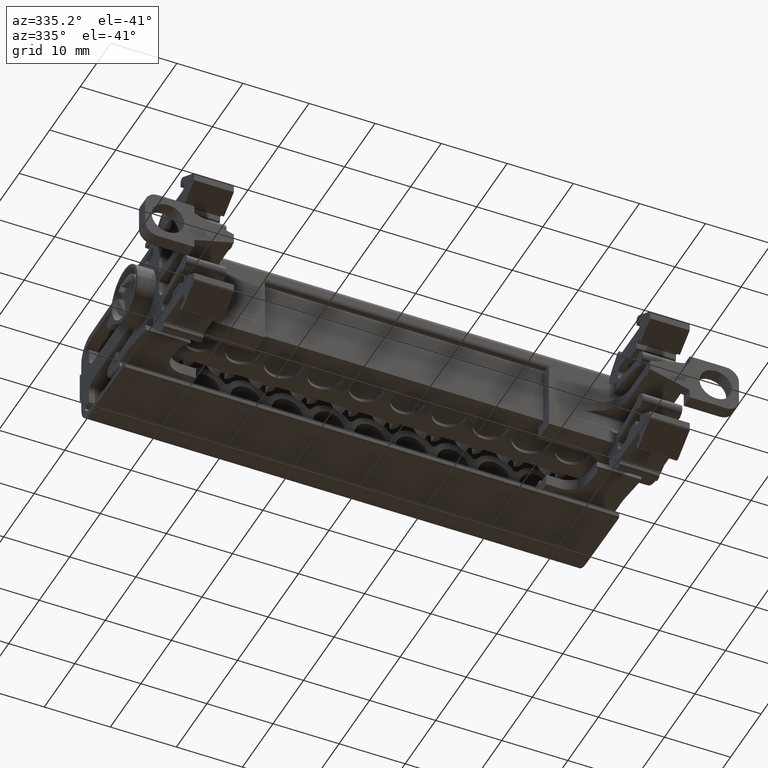
[diagram: clean part render]
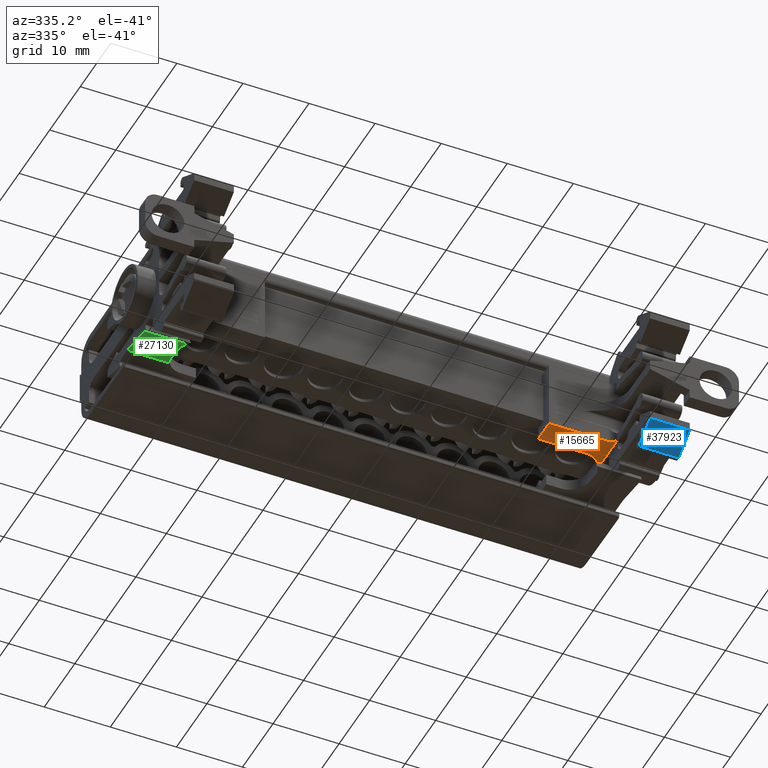
[diagram: same view with three faces highlighted in distinct colors, each labeled with its STEP entity id]
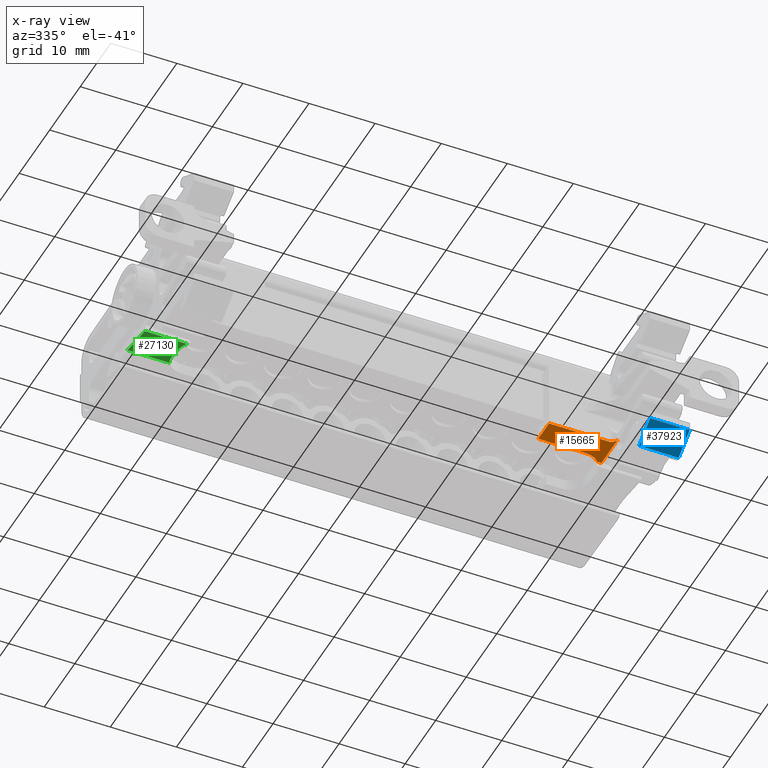
[diagram: x-ray of the same camera — body ghosted, the three highlighted faces saturated]
A machine part, auxiliary view with three faces highlighted in distinct colors.
The next image is the same camera in x-ray (body ghosted, the three faces saturated) — at least one of them is partly hidden behind the body in this view.
Their STEP definitions:

[orange] entity #15665 — the highlighted planar face has unit normal (0, 0, -1).
#243 = AXIS2_PLACEMENT_3D ( 'NONE', #26548, #26538, #26517 ) ;
#252 = VECTOR ( 'NONE', #18000, 1000.000000000000000 ) ;
#254 = VECTOR ( 'NONE', #17490, 1000.000000000000000 ) ;
#283 = VECTOR ( 'NONE', #18028, 1000.000000000000000 ) ;
#339 = VECTOR ( 'NONE', #17455, 1000.000000000000000 ) ;
#2372 = EDGE_LOOP ( 'NONE', ( #33967, #33385, #33372, #33381, #33376, #33940, #33356, #33363 ) ) ;
#5195 = CARTESIAN_POINT ( 'NONE',  ( -200.7514392833568000, -120.8690366618706500, 135.6507488562027100 ) ) ;
#5204 = CARTESIAN_POINT ( 'NONE',  ( -207.9794392833568400, -120.8690366618707500, 135.6507488562027100 ) ) ;
#5217 = CARTESIAN_POINT ( 'NONE',  ( -207.9794392833568400, -124.3970366618708400, 135.6507488562026000 ) ) ;
#5300 = CARTESIAN_POINT ( 'NONE',  ( -197.9794392833570400, -121.6520851615048300, 135.6507488562026500 ) ) ;
#5769 = LINE ( 'NONE', #5806, #30359 ) ;
#5806 = CARTESIAN_POINT ( 'NONE',  ( -197.9794392833567000, -126.7515076523239800, 135.6507488562019400 ) ) ;
#5825 = DIRECTION ( 'NONE',  ( -0.0000000000000000000, -1.000000000000000000, -1.383348239789810300E-013 ) ) ;
#7506 = EDGE_CURVE ( 'NONE', #8797, #19412, #39769, .T. ) ;
#7774 = B_SPLINE_CURVE_WITH_KNOTS ( 'NONE', 3,
 ( #36084, #36037, #36051, #36048, #36046, #36059, #36049, #36042, #36067, #36053, #36052, #36060, #36083, #36072, #36044, #36050, #36081, #36070 ),
 .UNSPECIFIED., .F., .F.,
 ( 4, 1, 1, 2, 2, 2, 1, 1, 2, 2, 4 ),
 ( 0.0000000000000000000, 0.1250000000000743300, 0.1875000000001063300, 0.2187500000000882900, 0.2500000000000702800, 0.5000000000000189800, 0.6250000000000109900, 0.6875000000000213200, 0.7187500000000041100, 0.7499999999999867900, 1.000000000000000000 ),
 .UNSPECIFIED. ) ;
#8797 = VERTEX_POINT ( 'NONE', #5195 ) ;
#8808 = VERTEX_POINT ( 'NONE', #5204 ) ;
#8827 = VERTEX_POINT ( 'NONE', #5217 ) ;
#8916 = VERTEX_POINT ( 'NONE', #5300 ) ;
#15665 = ADVANCED_FACE ( 'NONE', ( #26599 ), #26564, .T. ) ;
#15732 = EDGE_CURVE ( 'NONE', #8808, #8827, #17960, .T. ) ;
#15734 = EDGE_CURVE ( 'NONE', #8808, #8797, #17989, .T. ) ;
#15738 = EDGE_CURVE ( 'NONE', #19526, #8916, #17482, .T. ) ;
#15746 = EDGE_CURVE ( 'NONE', #8827, #19457, #17454, .T. ) ;
#16918 = CARTESIAN_POINT ( 'NONE',  ( -197.9794392833568400, -119.8857332516343900, 135.6507488562029100 ) ) ;
#16946 = CARTESIAN_POINT ( 'NONE',  ( -198.6337640226600200, -119.8857332516344100, 135.6507488562028800 ) ) ;
#17010 = CARTESIAN_POINT ( 'NONE',  ( -198.9874392833568200, -124.3970366618706900, 135.6507488562025400 ) ) ;
#17026 = CARTESIAN_POINT ( 'NONE',  ( -197.9794392833570400, -125.4050366618707800, 135.6507488562022600 ) ) ;
#17454 = LINE ( 'NONE', #17460, #339 ) ;
#17455 = DIRECTION ( 'NONE',  ( 1.000000000000000000, 1.100161628464522800E-014, 1.526780963412981600E-027 ) ) ;
#17460 = CARTESIAN_POINT ( 'NONE',  ( -190.9234392833568000, -124.3970366618705900, 135.6507488562027400 ) ) ;
#17482 = LINE ( 'NONE', #17489, #254 ) ;
#17489 = CARTESIAN_POINT ( 'NONE',  ( -197.9794392833571800, -127.3049944076848900, 135.6507488562023100 ) ) ;
#17490 = DIRECTION ( 'NONE',  ( 3.247763491985500000E-028, 1.000000000000000000, 7.639665454295208800E-043 ) ) ;
#17960 = LINE ( 'NONE', #17963, #252 ) ;
#17963 = CARTESIAN_POINT ( 'NONE',  ( -207.9794392833568400, -122.1794366618711100, 135.6507488562027400 ) ) ;
#17989 = LINE ( 'NONE', #18020, #283 ) ;
#18000 = DIRECTION ( 'NONE',  ( 1.100161628464490100E-014, -1.000000000000000000, 0.0000000000000000000 ) ) ;
#18020 = CARTESIAN_POINT ( 'NONE',  ( -275.6055192833567300, -120.8690366618707400, 135.6507488562025400 ) ) ;
#18028 = DIRECTION ( 'NONE',  ( 1.000000000000000000, -3.254029360469663800E-028, 2.352285033423030300E-015 ) ) ;
#19189 = VERTEX_POINT ( 'NONE', #16918 ) ;
#19412 = VERTEX_POINT ( 'NONE', #16946 ) ;
#19457 = VERTEX_POINT ( 'NONE', #17010 ) ;
#19526 = VERTEX_POINT ( 'NONE', #17026 ) ;
#26517 = DIRECTION ( 'NONE',  ( 0.0000000000000000000, 1.000000000000000000, 1.383348239789810300E-013 ) ) ;
#26538 = DIRECTION ( 'NONE',  ( 2.352285033423030300E-015, 1.383348239789810300E-013, -1.000000000000000000 ) ) ;
#26548 = CARTESIAN_POINT ( 'NONE',  ( -275.6055192833567300, -126.7515076523239800, 135.6507488562017400 ) ) ;
#26564 = PLANE ( 'NONE',  #243 ) ;
#26599 = FACE_OUTER_BOUND ( 'NONE', #2372, .T. ) ;
#27656 = EDGE_CURVE ( 'NONE', #19412, #19189, #35950, .T. ) ;
#27690 = EDGE_CURVE ( 'NONE', #19526, #19457, #7774, .T. ) ;
#28390 = EDGE_CURVE ( 'NONE', #19189, #8916, #5769, .T. ) ;
#30147 = VECTOR ( 'NONE', #35952, 1000.000000000000000 ) ;
#30359 = VECTOR ( 'NONE', #5825, 1000.000000000000000 ) ;
#30643 = CARTESIAN_POINT ( 'NONE',  ( -199.2143278143695700, -120.4396447438357300, 135.6507488562028000 ) ) ;
#30817 = CARTESIAN_POINT ( 'NONE',  ( -198.8975745004066800, -120.1978153228658400, 135.6507488562028200 ) ) ;
#31035 = CARTESIAN_POINT ( 'NONE',  ( -200.7514392833568000, -120.8690366618706500, 135.6507488562027100 ) ) ;
#31057 = CARTESIAN_POINT ( 'NONE',  ( -199.9537201147281800, -120.7827982852524100, 135.6507488562027700 ) ) ;
#31067 = CARTESIAN_POINT ( 'NONE',  ( -200.3431595251392100, -120.8688763488878000, 135.6507488562026800 ) ) ;
#31495 = CARTESIAN_POINT ( 'NONE',  ( -198.6337640226600200, -119.8857332516344100, 135.6507488562028800 ) ) ;
#33356 = ORIENTED_EDGE ( 'NONE', *, *, #27656, .T. ) ;
#33363 = ORIENTED_EDGE ( 'NONE', *, *, #28390, .T. ) ;
#33372 = ORIENTED_EDGE ( 'NONE', *, *, #15746, .F. ) ;
#33376 = ORIENTED_EDGE ( 'NONE', *, *, #15734, .T. ) ;
#33381 = ORIENTED_EDGE ( 'NONE', *, *, #15732, .F. ) ;
#33385 = ORIENTED_EDGE ( 'NONE', *, *, #27690, .T. ) ;
#33940 = ORIENTED_EDGE ( 'NONE', *, *, #7506, .T. ) ;
#33967 = ORIENTED_EDGE ( 'NONE', *, *, #15738, .F. ) ;
#35950 = LINE ( 'NONE', #35951, #30147 ) ;
#35951 = CARTESIAN_POINT ( 'NONE',  ( -275.6055192833567300, -119.8857332516343800, 135.6507488562026800 ) ) ;
#35952 = DIRECTION ( 'NONE',  ( 1.000000000000000000, -3.254029360469663800E-028, 2.352285033423030300E-015 ) ) ;
#36037 = CARTESIAN_POINT ( 'NONE',  ( -197.9795068219534900, -125.3408652598707100, 135.6507488562021400 ) ) ;
#36042 = CARTESIAN_POINT ( 'NONE',  ( -198.1012468715860800, -124.9048942778102600, 135.6507488562022000 ) ) ;
#36044 = CARTESIAN_POINT ( 'NONE',  ( -198.6015672947876300, -124.4736909055381800, 135.6507488562022300 ) ) ;
#36046 = CARTESIAN_POINT ( 'NONE',  ( -198.0285215878309100, -125.0938699104816000, 135.6507488562021100 ) ) ;
#36048 = CARTESIAN_POINT ( 'NONE',  ( -198.0141774011906100, -125.1391569575769600, 135.6507488562021400 ) ) ;
#36049 = CARTESIAN_POINT ( 'NONE',  ( -198.0438334014235400, -125.0501350592351200, 135.6507488562021700 ) ) ;
#36050 = CARTESIAN_POINT ( 'NONE',  ( -198.7350599867654600, -124.4207632452921600, 135.6507488562022000 ) ) ;
#36051 = CARTESIAN_POINT ( 'NONE',  ( -197.9884041499669800, -125.2463567749659600, 135.6507488562021100 ) ) ;
#36052 = CARTESIAN_POINT ( 'NONE',  ( -198.4032385193189600, -124.5782760355412400, 135.6507488562022300 ) ) ;
#36053 = CARTESIAN_POINT ( 'NONE',  ( -198.3237312767056700, -124.6431649582123400, 135.6507488562021700 ) ) ;
#36059 = CARTESIAN_POINT ( 'NONE',  ( -198.0388173806010200, -125.0638242639259800, 135.6507488562021400 ) ) ;
#36060 = CARTESIAN_POINT ( 'NONE',  ( -198.5063636180476300, -124.5179253568341300, 135.6507488562022000 ) ) ;
#36067 = CARTESIAN_POINT ( 'NONE',  ( -198.1765643903513600, -124.7904891628793100, 135.6507488562022300 ) ) ;
#36070 = CARTESIAN_POINT ( 'NONE',  ( -198.9874392833568200, -124.3970366618706900, 135.6507488562025400 ) ) ;
#36072 = CARTESIAN_POINT ( 'NONE',  ( -198.5842204274544500, -124.4810320647803400, 135.6507488562022600 ) ) ;
#36081 = CARTESIAN_POINT ( 'NONE',  ( -198.8587398091781600, -124.3971721144490900, 135.6507488562022000 ) ) ;
#36083 = CARTESIAN_POINT ( 'NONE',  ( -198.5527815137198800, -124.4953507226187000, 135.6507488562022000 ) ) ;
#36084 = CARTESIAN_POINT ( 'NONE',  ( -197.9794392833570400, -125.4050366618707800, 135.6507488562022600 ) ) ;
#39769 = B_SPLINE_CURVE_WITH_KNOTS ( 'NONE', 3,
 ( #31035, #31067, #31057, #30643, #30817, #31495 ),
 .UNSPECIFIED., .F., .F.,
 ( 4, 2, 4 ),
 ( 0.0000000000000000000, 0.5000000000000000000, 1.000000000000000000 ),
 .UNSPECIFIED. ) ;

[blue] entity #37923 — the highlighted planar face has unit normal (-0, 0.5079, 0.8614).
#1606 = AXIS2_PLACEMENT_3D ( 'NONE', #25428, #25389, #25497 ) ;
#1768 = B_SPLINE_CURVE_WITH_KNOTS ( 'NONE', 3,
 ( #4418, #4376, #4410, #4384 ),
 .UNSPECIFIED., .F., .F.,
 ( 4, 4 ),
 ( 0.0000000000000000000, 1.000000000000000000 ),
 .UNSPECIFIED. ) ;
#2561 = ORIENTED_EDGE ( 'NONE', *, *, #41273, .F. ) ;
#2613 = ORIENTED_EDGE ( 'NONE', *, *, #34615, .F. ) ;
#2621 = ORIENTED_EDGE ( 'NONE', *, *, #34640, .F. ) ;
#2739 = EDGE_LOOP ( 'NONE', ( #3613, #2561, #2621, #2613 ) ) ;
#3613 = ORIENTED_EDGE ( 'NONE', *, *, #34625, .F. ) ;
#4376 = CARTESIAN_POINT ( 'NONE',  ( -191.9794392833570700, -134.6499171879758900, 130.4948932964637700 ) ) ;
#4384 = CARTESIAN_POINT ( 'NONE',  ( -191.9794392833570700, -132.2075242372976000, 129.0550078305928100 ) ) ;
#4410 = CARTESIAN_POINT ( 'NONE',  ( -191.9794392833570700, -133.4287207126367600, 129.7749505635282500 ) ) ;
#4418 = CARTESIAN_POINT ( 'NONE',  ( -191.9794392833570400, -135.8711136633150400, 131.2148360293992700 ) ) ;
#5205 = CARTESIAN_POINT ( 'NONE',  ( -197.9794392833571200, -135.8711136633150700, 131.2148360293992900 ) ) ;
#5241 = CARTESIAN_POINT ( 'NONE',  ( -191.9794392833570400, -135.8711136633150400, 131.2148360293992700 ) ) ;
#8813 = VERTEX_POINT ( 'NONE', #5205 ) ;
#8845 = VERTEX_POINT ( 'NONE', #5241 ) ;
#11821 = VECTOR ( 'NONE', #20265, 1000.000000000000000 ) ;
#11822 = VECTOR ( 'NONE', #20421, 1000.000000000000000 ) ;
#11853 = VECTOR ( 'NONE', #21788, 1000.000000000000000 ) ;
#16944 = CARTESIAN_POINT ( 'NONE',  ( -197.9794392833571000, -132.2075242372976300, 129.0550078305927600 ) ) ;
#17083 = CARTESIAN_POINT ( 'NONE',  ( -191.9794392833570700, -132.2075242372976000, 129.0550078305928100 ) ) ;
#19341 = VERTEX_POINT ( 'NONE', #16944 ) ;
#19596 = VERTEX_POINT ( 'NONE', #17083 ) ;
#20265 = DIRECTION ( 'NONE',  ( -1.000000000000000000, -3.891776274058975100E-015, -6.601390987462281400E-015 ) ) ;
#20267 = LINE ( 'NONE', #20336, #11821 ) ;
#20336 = CARTESIAN_POINT ( 'NONE',  ( -191.9794392833572100, -132.2075242372976000, 129.0550078305928100 ) ) ;
#20370 = CARTESIAN_POINT ( 'NONE',  ( -191.9794392833572100, -135.8711136633150400, 131.2148360293993200 ) ) ;
#20421 = DIRECTION ( 'NONE',  ( 1.000000000000000000, 3.891776274058975100E-015, 6.601390987462281400E-015 ) ) ;
#20450 = LINE ( 'NONE', #20370, #11822 ) ;
#21726 = LINE ( 'NONE', #21803, #11853 ) ;
#21788 = DIRECTION ( 'NONE',  ( 0.0000000000000000000, -0.8614430768973289100, 0.5078541377853120800 ) ) ;
#21803 = CARTESIAN_POINT ( 'NONE',  ( -197.9794392833571000, -118.3192351310916600, 120.8673222150219000 ) ) ;
#25336 = FACE_OUTER_BOUND ( 'NONE', #2739, .T. ) ;
#25389 = DIRECTION ( 'NONE',  ( -7.663177248157359500E-015, 0.5078541377853120800, 0.8614430768973289100 ) ) ;
#25428 = CARTESIAN_POINT ( 'NONE',  ( -191.9794392833572100, -118.3192351310916300, 120.8673222150219400 ) ) ;
#25497 = DIRECTION ( 'NONE',  ( 0.0000000000000000000, -0.8614430768973289100, 0.5078541377853120800 ) ) ;
#25507 = PLANE ( 'NONE',  #1606 ) ;
#34615 = EDGE_CURVE ( 'NONE', #19341, #8813, #21726, .T. ) ;
#34625 = EDGE_CURVE ( 'NONE', #19596, #19341, #20267, .T. ) ;
#34640 = EDGE_CURVE ( 'NONE', #8813, #8845, #20450, .T. ) ;
#37923 = ADVANCED_FACE ( 'NONE', ( #25336 ), #25507, .F. ) ;
#41273 = EDGE_CURVE ( 'NONE', #8845, #19596, #1768, .T. ) ;

[green] entity #27130 — the highlighted planar face has unit normal (-0, -0.1736, 0.9848).
#445 = VECTOR ( 'NONE', #11180, 1000.000000000000100 ) ;
#1715 = VECTOR ( 'NONE', #4616, 1000.000000000000000 ) ;
#1790 = B_SPLINE_CURVE_WITH_KNOTS ( 'NONE', 3,
 ( #4654, #4649, #4677, #4666 ),
 .UNSPECIFIED., .F., .F.,
 ( 4, 4 ),
 ( 0.0000000000000000000, 1.000000000000000000 ),
 .UNSPECIFIED. ) ;
#1791 = B_SPLINE_CURVE_WITH_KNOTS ( 'NONE', 3,
 ( #3849, #3800, #3870, #3865 ),
 .UNSPECIFIED., .F., .F.,
 ( 4, 4 ),
 ( 0.0000000000000000000, 1.000000000000000000 ),
 .UNSPECIFIED. ) ;
#3465 = EDGE_LOOP ( 'NONE', ( #6489, #6592, #6492, #6578, #6549, #6583, #6515, #6487, #6498, #6488 ) ) ;
#3800 = CARTESIAN_POINT ( 'NONE',  ( -266.9794392833573500, -116.3325493551855500, 135.2756191002361800 ) ) ;
#3849 = CARTESIAN_POINT ( 'NONE',  ( -266.9794392833573500, -115.4343059431821500, 135.4340034842234700 ) ) ;
#3865 = CARTESIAN_POINT ( 'NONE',  ( -266.9794392833573500, -118.1290361341204400, 134.9588500766458900 ) ) ;
#3870 = CARTESIAN_POINT ( 'NONE',  ( -266.9794392833573500, -117.2307927317038600, 135.1172345150026200 ) ) ;
#4616 = DIRECTION ( 'NONE',  ( -1.000000000000000000, 9.548566543453507200E-017, -5.415267905565101400E-016 ) ) ;
#4634 = LINE ( 'NONE', #4640, #1715 ) ;
#4640 = CARTESIAN_POINT ( 'NONE',  ( -266.9794392833572900, -113.9895734237541800, 135.6887482836122000 ) ) ;
#4649 = CARTESIAN_POINT ( 'NONE',  ( -266.9794392833573500, -119.0688736321403500, 134.7931308712774700 ) ) ;
#4654 = CARTESIAN_POINT ( 'NONE',  ( -266.9794392833573500, -118.7728831330324700, 134.8453223254460100 ) ) ;
#4666 = CARTESIAN_POINT ( 'NONE',  ( -266.9794392833573500, -119.6608548627475800, 134.6887491070406500 ) ) ;
#4677 = CARTESIAN_POINT ( 'NONE',  ( -266.9794392833573500, -119.3648642075523700, 134.7409398498519400 ) ) ;
#5789 = B_SPLINE_CURVE_WITH_KNOTS ( 'NONE', 3,
 ( #23480, #23502, #23494, #23492, #23485, #23531, #23511, #23510, #23512, #23509, #23487, #23497, #23507, #23489, #23481, #23503, #23496 ),
 .UNSPECIFIED., .F., .F.,
 ( 4, 2, 2, 1, 1, 1, 2, 2, 2, 4 ),
 ( 0.0000000000000000000, 0.2499999999997537500, 0.3749999999996306300, 0.4374999999995410900, 0.4687499999994881300, 0.4843749999994756400, 0.4921874999994694800, 0.4999999999994632600, 0.7499999999997315500, 1.000000000000000000 ),
 .UNSPECIFIED. ) ;
#5866 = B_SPLINE_CURVE_WITH_KNOTS ( 'NONE', 3,
 ( #23797, #23808, #23826, #23825, #23802, #23800 ),
 .UNSPECIFIED., .F., .F.,
 ( 4, 2, 4 ),
 ( 0.0000000000000000000, 0.5000000000000000000, 1.000000000000000000 ),
 .UNSPECIFIED. ) ;
#6487 = ORIENTED_EDGE ( 'NONE', *, *, #22450, .F. ) ;
#6488 = ORIENTED_EDGE ( 'NONE', *, *, #31464, .F. ) ;
#6489 = ORIENTED_EDGE ( 'NONE', *, *, #41384, .F. ) ;
#6492 = ORIENTED_EDGE ( 'NONE', *, *, #41400, .F. ) ;
#6498 = ORIENTED_EDGE ( 'NONE', *, *, #31511, .F. ) ;
#6515 = ORIENTED_EDGE ( 'NONE', *, *, #31410, .T. ) ;
#6549 = ORIENTED_EDGE ( 'NONE', *, *, #41003, .F. ) ;
#6578 = ORIENTED_EDGE ( 'NONE', *, *, #40946, .F. ) ;
#6583 = ORIENTED_EDGE ( 'NONE', *, *, #41358, .F. ) ;
#6592 = ORIENTED_EDGE ( 'NONE', *, *, #40931, .F. ) ;
#11180 = DIRECTION ( 'NONE',  ( -0.0000000000000000000, 0.9848077898703765400, 0.1736479686337399100 ) ) ;
#11189 = CARTESIAN_POINT ( 'NONE',  ( -260.9794392833577500, -126.3967728629663300, 133.5010269828531200 ) ) ;
#11191 = LINE ( 'NONE', #11189, #445 ) ;
#12584 = VERTEX_POINT ( 'NONE', #16394 ) ;
#12592 = VERTEX_POINT ( 'NONE', #16371 ) ;
#12603 = VERTEX_POINT ( 'NONE', #16347 ) ;
#12612 = VERTEX_POINT ( 'NONE', #16414 ) ;
#12618 = VERTEX_POINT ( 'NONE', #16415 ) ;
#13690 = B_SPLINE_CURVE_WITH_KNOTS ( 'NONE', 3,
 ( #24809, #24810, #24812, #24778 ),
 .UNSPECIFIED., .F., .F.,
 ( 4, 4 ),
 ( 0.0000000000000000000, 1.000000000000000000 ),
 .UNSPECIFIED. ) ;
#16347 = CARTESIAN_POINT ( 'NONE',  ( -266.9794392833573500, -118.7728831330324700, 134.8453223254460100 ) ) ;
#16371 = CARTESIAN_POINT ( 'NONE',  ( -266.9794392833573500, -114.6107473392245600, 135.5792186985508200 ) ) ;
#16394 = CARTESIAN_POINT ( 'NONE',  ( -266.9794392833573500, -115.4343059431821500, 135.4340034842234700 ) ) ;
#16414 = CARTESIAN_POINT ( 'NONE',  ( -266.9794392833573500, -118.1290361341204400, 134.9588500766458900 ) ) ;
#16415 = CARTESIAN_POINT ( 'NONE',  ( -266.9794392833573500, -113.9895734439355000, 135.6887483980660000 ) ) ;
#17045 = CARTESIAN_POINT ( 'NONE',  ( -260.9794392833573500, -115.4490366618583400, 135.4314058567963700 ) ) ;
#17120 = CARTESIAN_POINT ( 'NONE',  ( -260.4962068303445300, -119.6608548361531500, 134.6887491070406800 ) ) ;
#17180 = CARTESIAN_POINT ( 'NONE',  ( -266.9794392833573500, -119.6608548627475800, 134.6887491070406500 ) ) ;
#17220 = CARTESIAN_POINT ( 'NONE',  ( -260.9794392833576400, -118.0970366618712400, 134.9644925914119000 ) ) ;
#17335 = CARTESIAN_POINT ( 'NONE',  ( -260.5637682407607400, -113.9895733200715600, 135.6887484211007100 ) ) ;
#19546 = VERTEX_POINT ( 'NONE', #17045 ) ;
#19578 = VERTEX_POINT ( 'NONE', #17120 ) ;
#19617 = VERTEX_POINT ( 'NONE', #17180 ) ;
#19638 = VERTEX_POINT ( 'NONE', #17220 ) ;
#19671 = VERTEX_POINT ( 'NONE', #17335 ) ;
#22450 = EDGE_CURVE ( 'NONE', #19638, #19546, #11191, .T. ) ;
#23321 = CARTESIAN_POINT ( 'NONE',  ( -266.9794392833572900, -119.6608549159363700, 134.6887495825487000 ) ) ;
#23339 = DIRECTION ( 'NONE',  ( 1.000000000000000000, -9.548566543453507200E-017, 5.415267905565101400E-016 ) ) ;
#23354 = LINE ( 'NONE', #23321, #29573 ) ;
#23480 = CARTESIAN_POINT ( 'NONE',  ( -260.4962068303445300, -119.6608548361531500, 134.6887491070406800 ) ) ;
#23481 = CARTESIAN_POINT ( 'NONE',  ( -260.9613228771471500, -118.4424071464935700, 134.9037143156604400 ) ) ;
#23485 = CARTESIAN_POINT ( 'NONE',  ( -260.7542004167862000, -119.1939841874802400, 134.7711011278956100 ) ) ;
#23487 = CARTESIAN_POINT ( 'NONE',  ( -260.8530480422841200, -118.9245395091637500, 134.8185813246661300 ) ) ;
#23489 = CARTESIAN_POINT ( 'NONE',  ( -260.9131984459782000, -118.7151167324814500, 134.8556128993998300 ) ) ;
#23492 = CARTESIAN_POINT ( 'NONE',  ( -260.7251655304451700, -119.2588591309576900, 134.7596683765605400 ) ) ;
#23494 = CARTESIAN_POINT ( 'NONE',  ( -260.6334617302490000, -119.4452097616512600, 134.7268084980095800 ) ) ;
#23496 = CARTESIAN_POINT ( 'NONE',  ( -260.9794392833576400, -118.0970366618712400, 134.9644925914119000 ) ) ;
#23497 = CARTESIAN_POINT ( 'NONE',  ( -260.8550229846598500, -118.9181900687525500, 134.8197008592405000 ) ) ;
#23502 = CARTESIAN_POINT ( 'NONE',  ( -260.5662297467227400, -119.5583708838523800, 134.7068197462483300 ) ) ;
#23503 = CARTESIAN_POINT ( 'NONE',  ( -260.9794392833576400, -118.2813640761882300, 134.9319906436210500 ) ) ;
#23507 = CARTESIAN_POINT ( 'NONE',  ( -260.8832147188309100, -118.8269570721127300, 134.8357878110998300 ) ) ;
#23509 = CARTESIAN_POINT ( 'NONE',  ( -260.8501898865652600, -118.9336225312425300, 134.8169799253562600 ) ) ;
#23510 = CARTESIAN_POINT ( 'NONE',  ( -260.8356041106197300, -118.9787158837594300, 134.8090309882328200 ) ) ;
#23511 = CARTESIAN_POINT ( 'NONE',  ( -260.8142889842821400, -119.0408387870151200, 134.7980833969224600 ) ) ;
#23512 = CARTESIAN_POINT ( 'NONE',  ( -260.8458738568274400, -118.9472159819570300, 134.8145834450456800 ) ) ;
#23531 = CARTESIAN_POINT ( 'NONE',  ( -260.7947589144293900, -119.0925700178372900, 134.7889694426256100 ) ) ;
#23797 = CARTESIAN_POINT ( 'NONE',  ( -260.5637682407607400, -113.9895733200715600, 135.6887484211007100 ) ) ;
#23800 = CARTESIAN_POINT ( 'NONE',  ( -260.9794392833573500, -115.4490366618583400, 135.4314058567963700 ) ) ;
#23802 = CARTESIAN_POINT ( 'NONE',  ( -260.9793409509829900, -115.1910259271422500, 135.4769000541716400 ) ) ;
#23808 = CARTESIAN_POINT ( 'NONE',  ( -260.6998184409936800, -114.2092290783817000, 135.6500171133093900 ) ) ;
#23825 = CARTESIAN_POINT ( 'NONE',  ( -260.9440263658366300, -114.9381087388320000, 135.5214961230029200 ) ) ;
#23826 = CARTESIAN_POINT ( 'NONE',  ( -260.8029646900004600, -114.4424614550230800, 135.6088920035774100 ) ) ;
#24297 = CARTESIAN_POINT ( 'NONE',  ( -266.9794392833573500, -118.3436517577241900, 134.9210072507470400 ) ) ;
#24307 = CARTESIAN_POINT ( 'NONE',  ( -266.9794392833573500, -118.7728831330324700, 134.8453223254460100 ) ) ;
#24310 = CARTESIAN_POINT ( 'NONE',  ( -266.9794392833573500, -118.1290361341204400, 134.9588500766458900 ) ) ;
#24326 = CARTESIAN_POINT ( 'NONE',  ( -266.9794392833573500, -118.5582674072262500, 134.8831645717249900 ) ) ;
#24327 = CARTESIAN_POINT ( 'NONE',  ( -266.9794392833573500, -114.8852668857054800, 135.5308136941904700 ) ) ;
#24332 = CARTESIAN_POINT ( 'NONE',  ( -266.9794392833573500, -114.6107473392245600, 135.5792186985508200 ) ) ;
#24337 = CARTESIAN_POINT ( 'NONE',  ( -266.9794392833573500, -115.1597864321863700, 135.4824086898301200 ) ) ;
#24370 = CARTESIAN_POINT ( 'NONE',  ( -266.9794392833573500, -115.4343059431821500, 135.4340034842234700 ) ) ;
#24778 = CARTESIAN_POINT ( 'NONE',  ( -266.9794392833573500, -114.6107473392245600, 135.5792186985508200 ) ) ;
#24809 = CARTESIAN_POINT ( 'NONE',  ( -266.9794392833573500, -113.9895734439355000, 135.6887483980660000 ) ) ;
#24810 = CARTESIAN_POINT ( 'NONE',  ( -266.9794392833573500, -114.1966314180013300, 135.6522385490959800 ) ) ;
#24812 = CARTESIAN_POINT ( 'NONE',  ( -266.9794392833573500, -114.4036893786129700, 135.6157286238234300 ) ) ;
#25368 = B_SPLINE_CURVE_WITH_KNOTS ( 'NONE', 3,
 ( #24310, #24297, #24326, #24307 ),
 .UNSPECIFIED., .F., .F.,
 ( 4, 4 ),
 ( 0.0000000000000000000, 1.000000000000000000 ),
 .UNSPECIFIED. ) ;
#25466 = B_SPLINE_CURVE_WITH_KNOTS ( 'NONE', 3,
 ( #24332, #24327, #24337, #24370 ),
 .UNSPECIFIED., .F., .F.,
 ( 4, 4 ),
 ( 0.0000000000000000000, 1.000000000000000000 ),
 .UNSPECIFIED. ) ;
#27130 = ADVANCED_FACE ( 'NONE', ( #36152 ), #36156, .F. ) ;
#29573 = VECTOR ( 'NONE', #23339, 1000.000000000000000 ) ;
#30091 = AXIS2_PLACEMENT_3D ( 'NONE', #36161, #36171, #36172 ) ;
#31410 = EDGE_CURVE ( 'NONE', #19671, #19546, #5866, .T. ) ;
#31464 = EDGE_CURVE ( 'NONE', #19617, #19578, #23354, .T. ) ;
#31511 = EDGE_CURVE ( 'NONE', #19578, #19638, #5789, .T. ) ;
#36152 = FACE_OUTER_BOUND ( 'NONE', #3465, .T. ) ;
#36156 = PLANE ( 'NONE',  #30091 ) ;
#36161 = CARTESIAN_POINT ( 'NONE',  ( -266.9794392833572900, -126.3967728629663300, 133.5010269828531200 ) ) ;
#36171 = DIRECTION ( 'NONE',  ( -5.498806935999026900E-016, -0.1736479686337399100, 0.9848077898703765400 ) ) ;
#36172 = DIRECTION ( 'NONE',  ( 0.0000000000000000000, -0.9848077898703765400, -0.1736479686337399100 ) ) ;
#40931 = EDGE_CURVE ( 'NONE', #12612, #12603, #25368, .T. ) ;
#40946 = EDGE_CURVE ( 'NONE', #12592, #12584, #25466, .T. ) ;
#41003 = EDGE_CURVE ( 'NONE', #12618, #12592, #13690, .T. ) ;
#41358 = EDGE_CURVE ( 'NONE', #19671, #12618, #4634, .T. ) ;
#41384 = EDGE_CURVE ( 'NONE', #12603, #19617, #1790, .T. ) ;
#41400 = EDGE_CURVE ( 'NONE', #12584, #12612, #1791, .T. ) ;